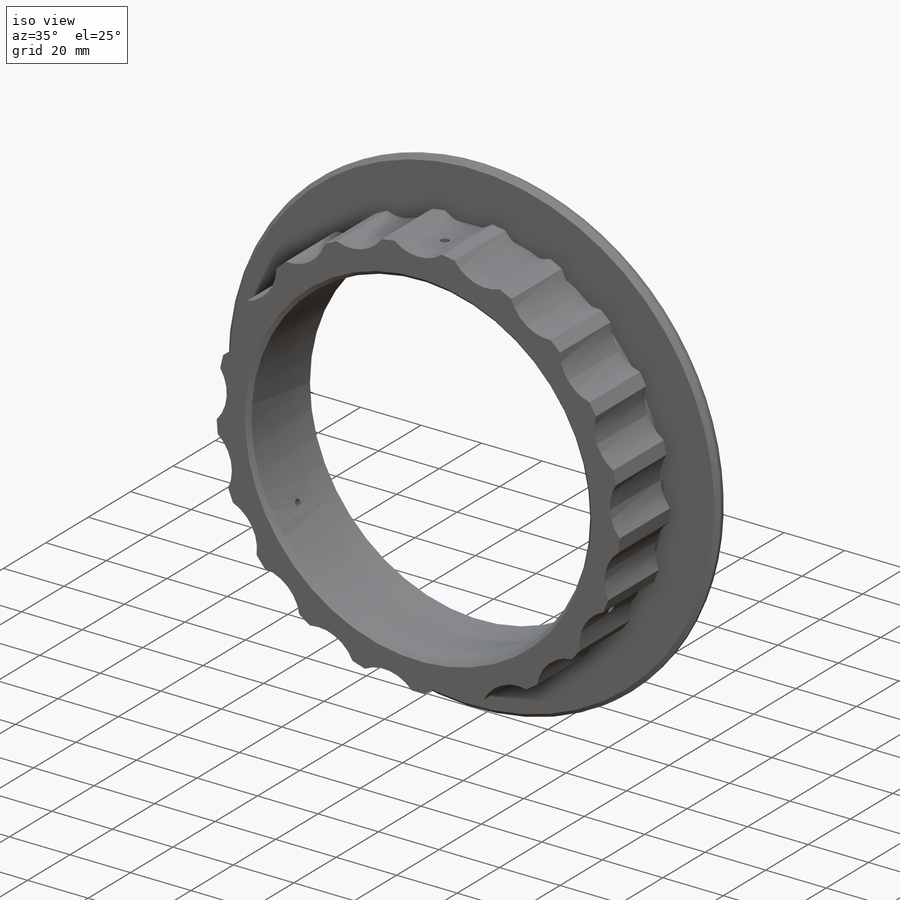
[diagram: iso view]
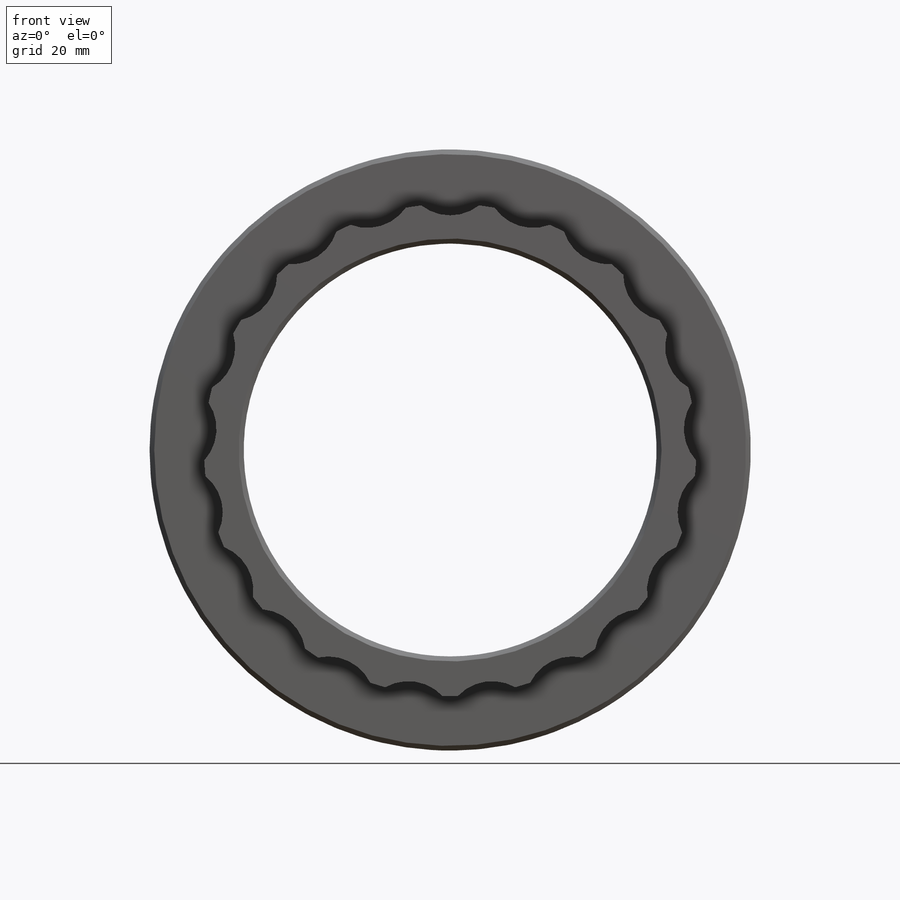
[diagram: front view]
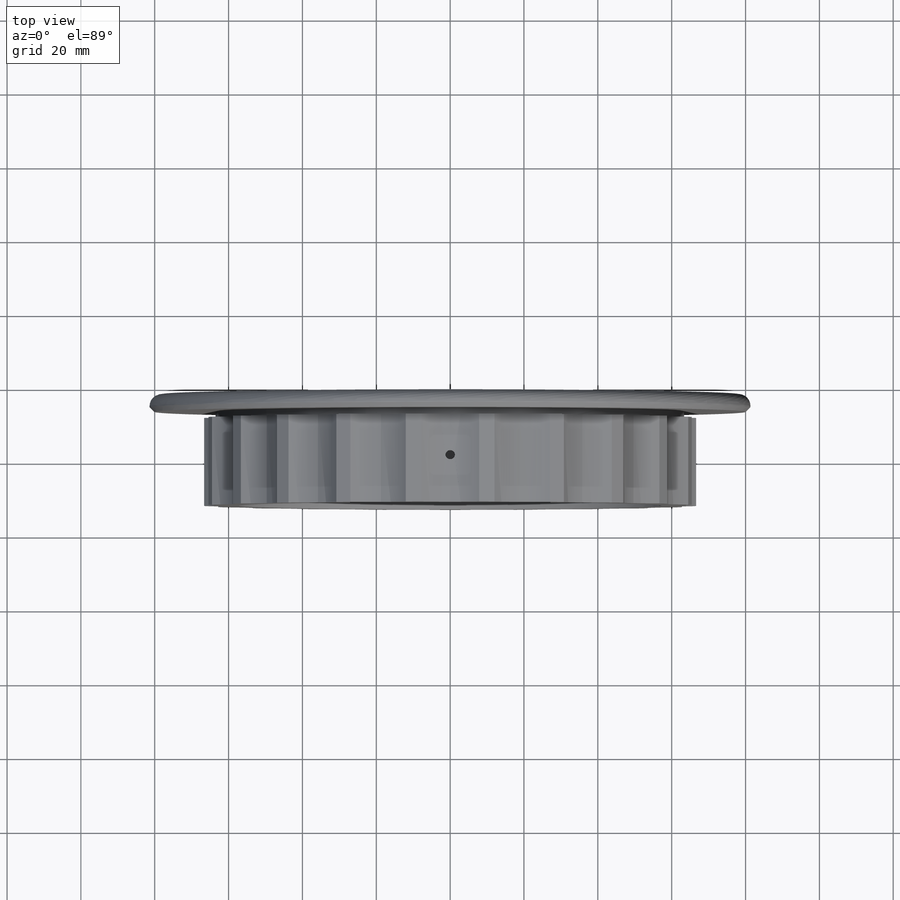
[diagram: top view]
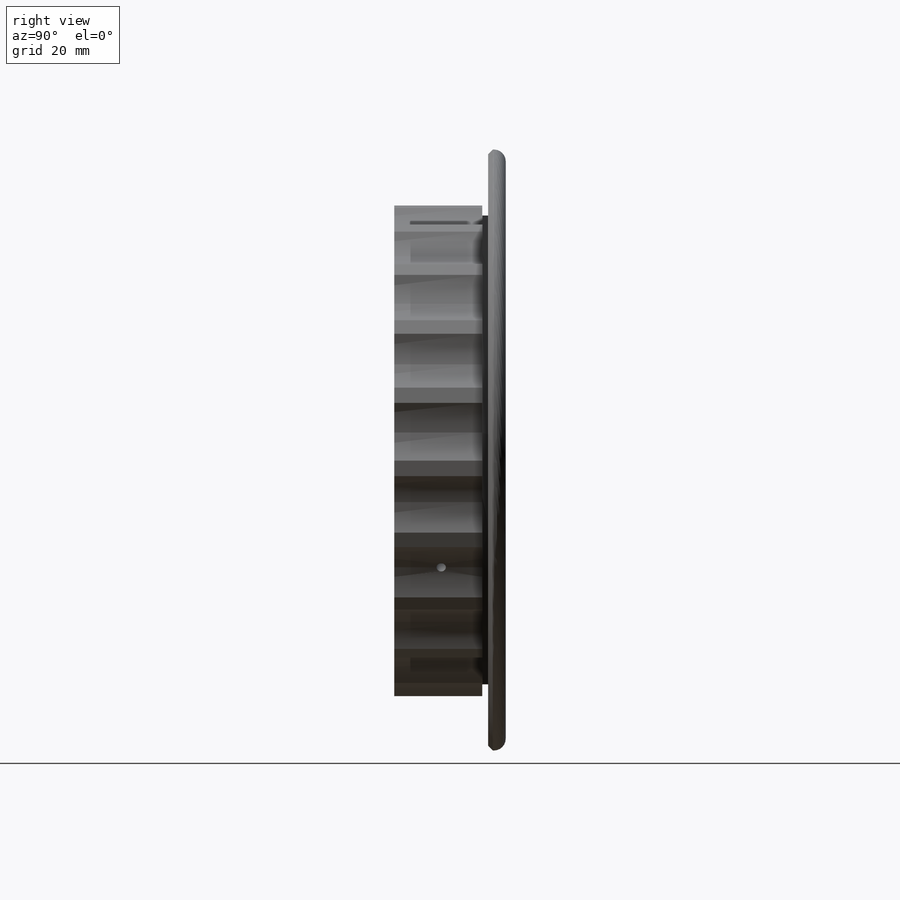
[diagram: right view]
SOLIDWORKS PART (.sldprt)
format: sldprt  version: not decoded by parser v0  size: 342,528 bytes
history: native  units: mm
features: sketch x5, extrude x3, pattern_circular x2, chamfer x2, material x1, fillet x1, cut_extrude x1 (+13 scaffold rows collapsed)
feature tree (28):
  scaffold x13  (default folders/planes/origin — collapsed)
  material  "Material <not specified>"
  sketch  "Sketch1"
  sketch  "Sketch2"  dims[D1=112.0mm]
  extrude  "Extrude1"  Depth=25.4mm
  sketch  "Sketch3"  dims[D1=133.35mm]
  extrude  "Extrude2"  Depth=12.7mm
  pattern_circular  "CirPattern1"  Count=21 Angle=360deg
  sketch  "Sketch4"  dims[D1=25.4mm]
  extrude  "Extrude3"  Depth=4.7625mm
  chamfer  "Chamfer1"  Distance=1.27mm Angle=45deg
  fillet  "Fillet2"  Radius=3.175mm
  chamfer  "Chamfer2"  Distance=1.27mm Angle=45deg
  sketch  "Sketch5"  dims[D1=2.54mm]
  cut_extrude  "Cut-Extrude1"  [1 undecoded]
  pattern_circular  "CirPattern2"  Count=3 Angle=360deg
decode coverage: 12 of 14 modeling features carry decoded parameters
note: 1 parameter value undecoded
note: suppression state not decoded; provenance and decode notes live in map.json
